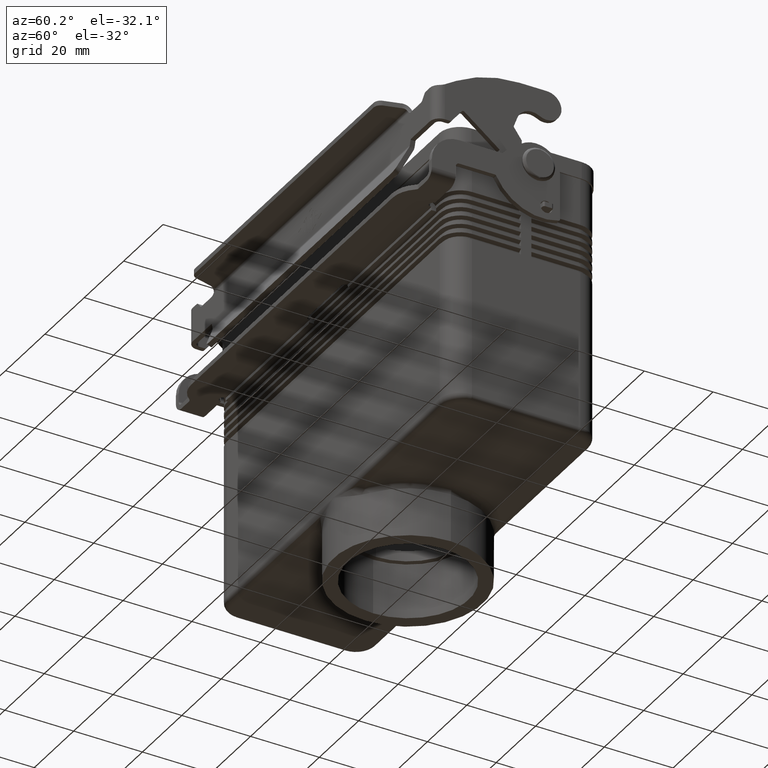
[diagram: clean part render]
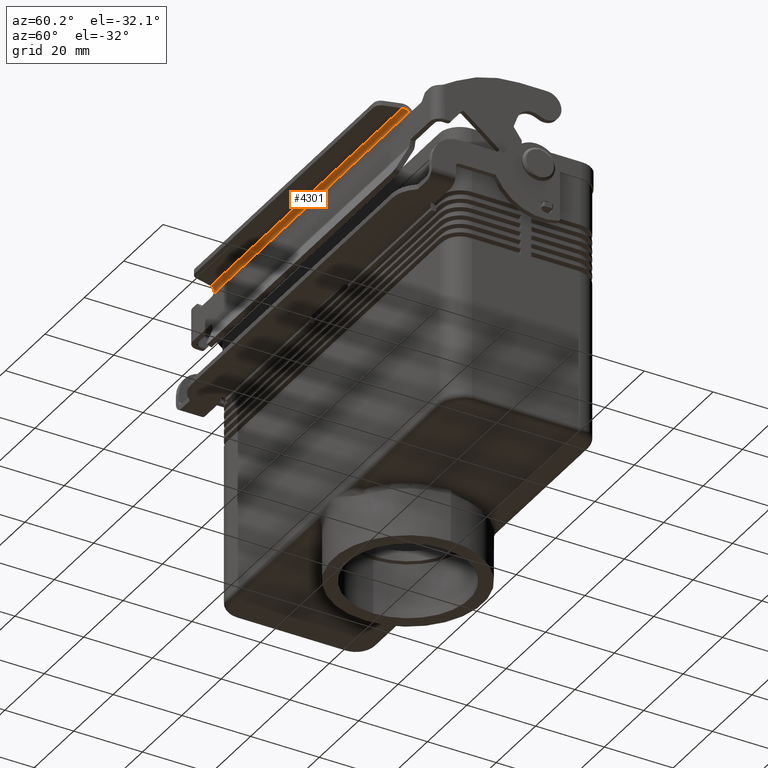
[diagram: same view with one face highlighted and labeled with its STEP entity id]
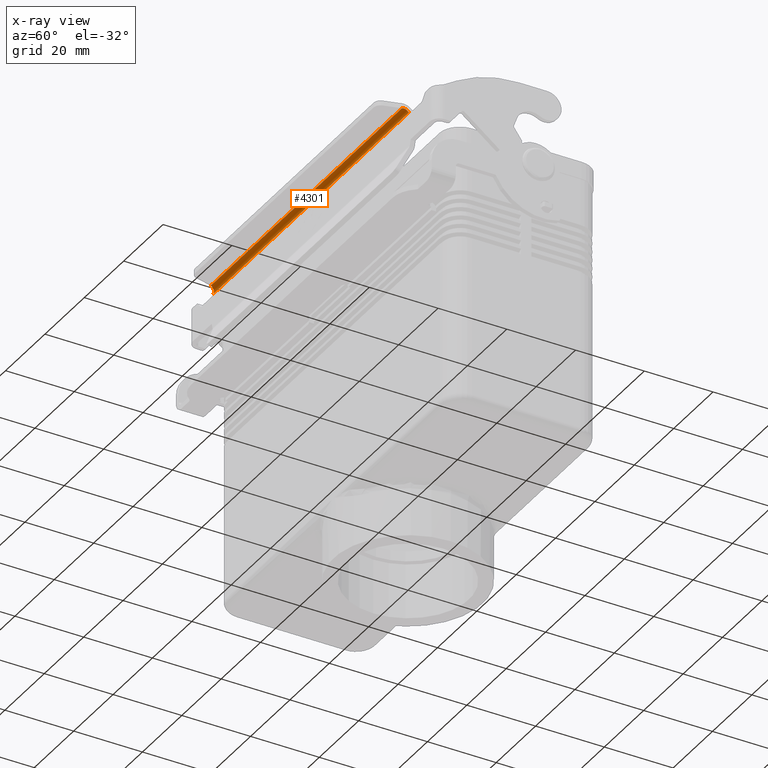
[diagram: x-ray of the same camera — body ghosted, the highlighted face saturated]
A machine part, auxiliary view. The second image highlights one B-rep face of the part: STEP entity #4301.
The next image is the same camera in x-ray: the body ghosted, the highlighted face saturated — about 0% of this face is hidden behind the body in this view.
In plain terms, the highlighted cylindrical surface (edge-blend (fillet) strip) has radius 1.4 mm, axis along (1, 0, 0).
Its self-contained STEP definition (entity closure, byte-faithful):
#1749=CARTESIAN_POINT('',(49.695901726643527,-28.166637302590768,15.777622637585802));
#1750=VERTEX_POINT('',#1749);
#1758=CARTESIAN_POINT('',(-49.695901726643541,-28.166637302590772,15.777622637585782));
#1759=VERTEX_POINT('',#1758);
#1760=CARTESIAN_POINT('',(49.695901726643527,-28.166637302590768,15.777622637585802));
#1761=DIRECTION('',(-1.0,0.0,0.0));
#1762=VECTOR('',#1761,99.391803453287068);
#1763=LINE('',#1760,#1762);
#1764=EDGE_CURVE('',#1750,#1759,#1763,.T.);
#2651=CARTESIAN_POINT('',(-49.284473957975621,-28.249041068051909,16.250845801356377));
#2652=VERTEX_POINT('',#2651);
#2661=CARTESIAN_POINT('',(-48.622213074482168,-29.566637302590756,17.177622637585767));
#2662=VERTEX_POINT('',#2661);
#2663=CARTESIAN_POINT('',(-48.622213074482168,-29.566637302590753,17.177622637585785));
#2664=CARTESIAN_POINT('',(-48.697663144011216,-29.371092631543021,17.177622637585699));
#2665=CARTESIAN_POINT('',(-48.772297783128948,-29.177699796615684,17.136653654782748));
#2666=CARTESIAN_POINT('',(-48.923177703554195,-28.820254018692275,16.978092881754190));
#2667=CARTESIAN_POINT('',(-48.997792193992154,-28.660124262649621,16.862265861945314));
#2668=CARTESIAN_POINT('',(-49.143862777076095,-28.406011506645349,16.581653832938354));
#2669=CARTESIAN_POINT('',(-49.213833182780284,-28.310925264527317,16.423150097713755));
#2670=CARTESIAN_POINT('',(-49.284473957975621,-28.249041068051906,16.250845801356380));
#2671=B_SPLINE_CURVE_WITH_KNOTS('',3,(#2663,#2664,#2665,#2666,#2667,#2668,#2669,#2670),.UNSPECIFIED.,.F.,.U.,(4,2,2,4),(0.0,0.062878762893677,0.125740359299734,0.184611141341724),.UNSPECIFIED.);
#2672=EDGE_CURVE('',#2662,#2652,#2671,.T.);
#2877=CARTESIAN_POINT('',(-49.284473957975635,-28.249041068051906,16.250845801356380));
#2878=CARTESIAN_POINT('',(-49.304501386372607,-28.231524938837424,16.202075606523106));
#2879=CARTESIAN_POINT('',(-49.345482900503384,-28.203567755560929,16.113993874477870));
#2880=CARTESIAN_POINT('',(-49.531027992660526,-28.166317480210957,15.892764304978295));
#2881=CARTESIAN_POINT('',(-49.641115635898061,-28.166637302590757,15.814140904568866));
#2882=CARTESIAN_POINT('',(-49.695901726643548,-28.166637302590757,15.777622637585784));
#2883=B_SPLINE_CURVE_WITH_KNOTS('',3,(#2877,#2878,#2879,#2880,#2881,#2882),.UNSPECIFIED.,.F.,.U.,(4,2,4),(0.0,0.016666733685510,0.035483038053694),.UNSPECIFIED.);
#2884=EDGE_CURVE('',#2652,#1759,#2883,.T.);
#4239=CARTESIAN_POINT('',(48.622213074482161,-29.566637302590753,17.177622637585785));
#4240=VERTEX_POINT('',#4239);
#4241=CARTESIAN_POINT('',(-48.622213074482168,-29.566637302590756,17.177622637585767));
#4242=DIRECTION('',(1.0,0.0,0.0));
#4243=VECTOR('',#4242,97.244426148964322);
#4244=LINE('',#4241,#4243);
#4245=EDGE_CURVE('',#2662,#4240,#4244,.T.);
#4268=CARTESIAN_POINT('',(25.214632212026373,-29.566637302590756,15.777622637585795));
#4269=DIRECTION('',(1.0,2.220446E-016,3.217164E-016));
#4270=DIRECTION('',(0.0,1.0,0.0));
#4271=AXIS2_PLACEMENT_3D('',#4268,#4269,#4270);
#4272=CYLINDRICAL_SURFACE('',#4271,1.400000000000001);
#4273=ORIENTED_EDGE('',*,*,#1764,.F.);
#4274=CARTESIAN_POINT('',(49.284473957975635,-28.249041068051895,16.250845801356387));
#4275=VERTEX_POINT('',#4274);
#4276=CARTESIAN_POINT('',(49.695901726643527,-28.166637302590747,15.777622637585804));
#4277=CARTESIAN_POINT('',(49.641115635986750,-28.166637302590747,15.814140904509772));
#4278=CARTESIAN_POINT('',(49.531027992984640,-28.166317480216826,15.892764304743274));
#4279=CARTESIAN_POINT('',(49.345482900623466,-28.203567755473987,16.113993874200599));
#4280=CARTESIAN_POINT('',(49.304501386395351,-28.231524938817575,16.202075606467886));
#4281=CARTESIAN_POINT('',(49.284473957975635,-28.249041068051902,16.250845801356391));
#4282=B_SPLINE_CURVE_WITH_KNOTS('',3,(#4276,#4277,#4278,#4279,#4280,#4281),.UNSPECIFIED.,.F.,.U.,(4,2,4),(0.0,0.019752441858473,0.037248368966231),.UNSPECIFIED.);
#4283=EDGE_CURVE('',#1750,#4275,#4282,.T.);
#4284=ORIENTED_EDGE('',*,*,#4283,.T.);
#4285=CARTESIAN_POINT('',(49.284473957975628,-28.249041068051895,16.250845801356384));
#4286=CARTESIAN_POINT('',(49.209023888446126,-28.315138402260629,16.434880745826487));
#4287=CARTESIAN_POINT('',(49.134389249328606,-28.419065935595739,16.603042316846150));
#4288=CARTESIAN_POINT('',(48.983509328903281,-28.689116435162493,16.885852731404473));
#4289=CARTESIAN_POINT('',(48.908894838465493,-28.852252402966823,16.997405827714800));
#4290=CARTESIAN_POINT('',(48.762824255381638,-29.202241970921413,17.141710040786894));
#4291=CARTESIAN_POINT('',(48.692853849677292,-29.383556925935054,17.177622637585795));
#4292=CARTESIAN_POINT('',(48.622213074482161,-29.566637302590753,17.177622637585802));
#4293=B_SPLINE_CURVE_WITH_KNOTS('',3,(#4285,#4286,#4287,#4288,#4289,#4290,#4291,#4292),.UNSPECIFIED.,.F.,.U.,(4,2,2,4),(0.0,0.062878762894048,0.125740359300942,0.184611141344024),.UNSPECIFIED.);
#4294=EDGE_CURVE('',#4275,#4240,#4293,.T.);
#4295=ORIENTED_EDGE('',*,*,#4294,.T.);
#4296=ORIENTED_EDGE('',*,*,#4245,.F.);
#4297=ORIENTED_EDGE('',*,*,#2672,.T.);
#4298=ORIENTED_EDGE('',*,*,#2884,.T.);
#4299=EDGE_LOOP('',(#4273,#4284,#4295,#4296,#4297,#4298));
#4300=FACE_OUTER_BOUND('',#4299,.T.);
#4301=ADVANCED_FACE('',(#4300),#4272,.F.);